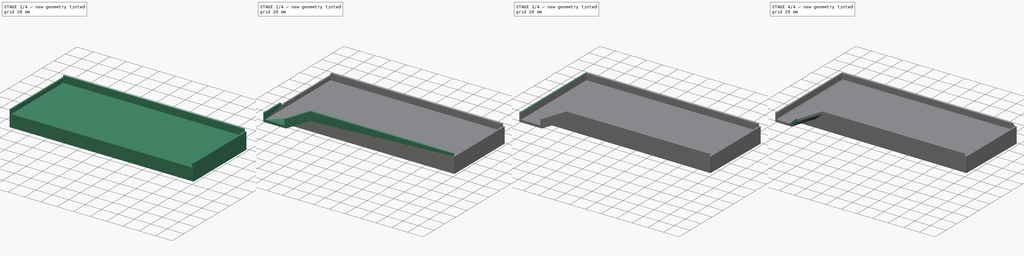
[diagram: build sequence overview — one tinted view per stage of 4, left to right]
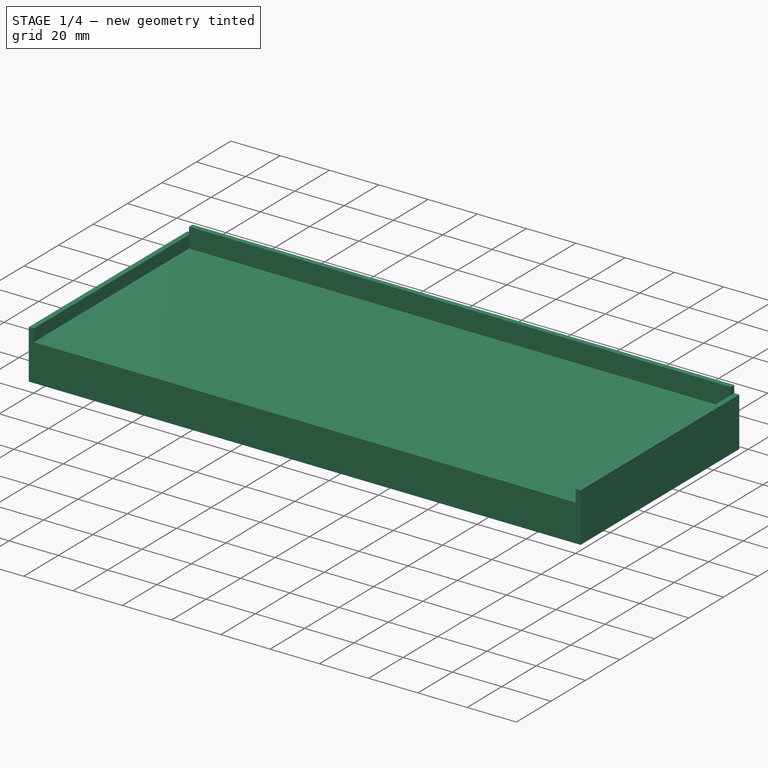
[diagram: stage 1 of 4 — iso view after this stage's code; geometry added in this stage tinted green]
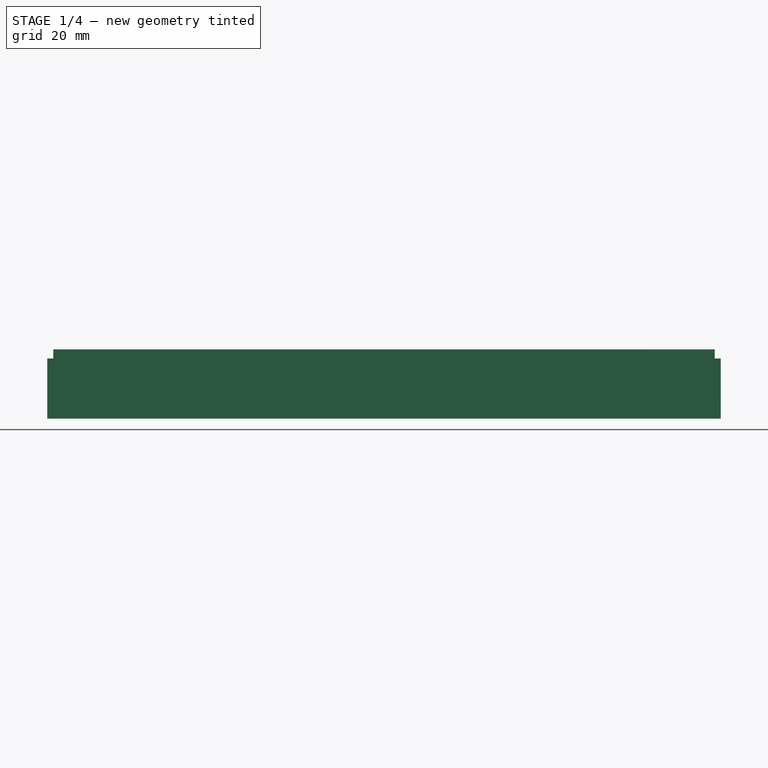
[diagram: stage 1 of 4 — front view after this stage's code; geometry added in this stage tinted green]
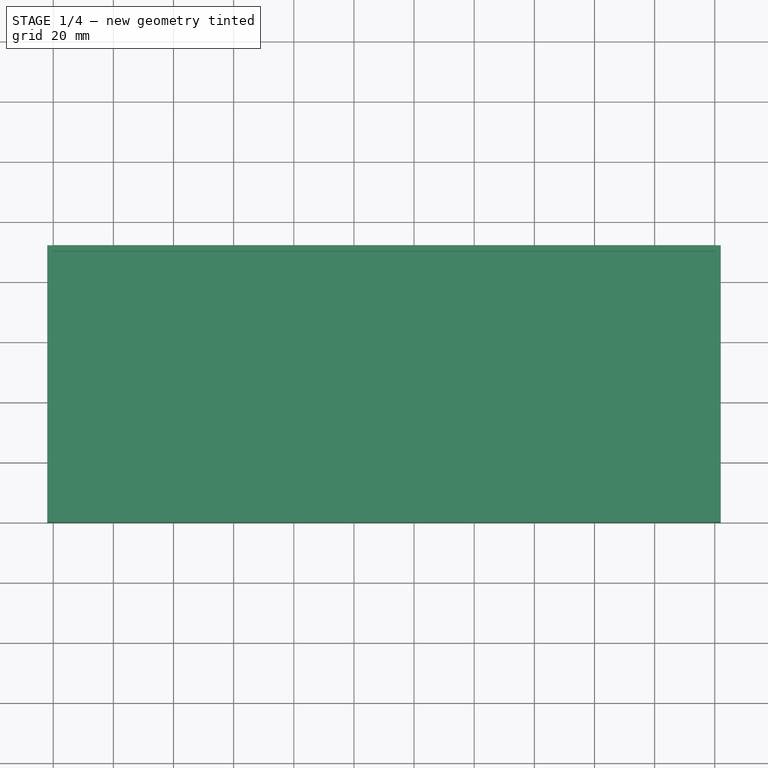
[diagram: stage 1 of 4 — top view after this stage's code; geometry added in this stage tinted green]
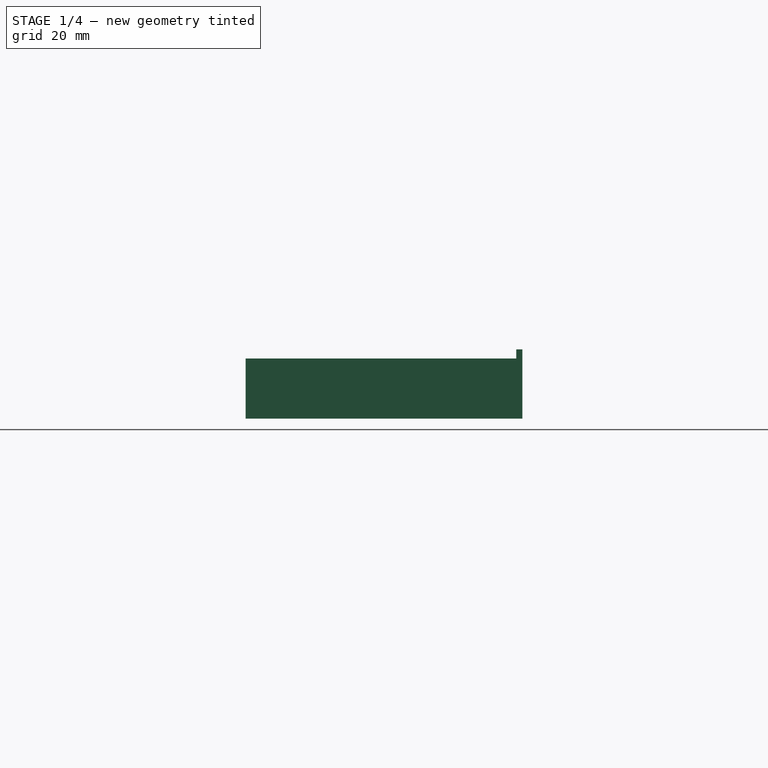
[diagram: stage 1 of 4 — right view after this stage's code; geometry added in this stage tinted green]
FCSTD DOCUMENT  (FreeCAD 1.0R39319 (Git))
Label: drainedTray
License: All rights reserved
LicenseURL: https://en.wikipedia.org/wiki/All_rights_reserved
objects: PartDesign::Pad×7, PartDesign::Chamfer×6, Sketcher::SketchObject×2, PartDesign::Body×1
note: 44 computed .brp shape members not serialized (recipe doc carries the construction recipe); baked Part::Feature solids carry a one-line shape summary decoded from their .brp

FEATURE [Sketcher::SketchObject] Sketch
  ArcFitTolerance = 1e-06
  AttachmentSupport = -> [XY_Plane]
  FullyConstrained = true
  MakeInternals = false
  MapMode = 5
  sketch-geometry (16):
    g0: LineSegment StartX=0 StartY=0 StartZ=0 EndX=220 EndY=0 EndZ=0
    g1: LineSegment StartX=220 StartY=0 StartZ=0 EndX=220 EndY=90 EndZ=0
    g2: LineSegment StartX=220 StartY=90 StartZ=0 EndX=0 EndY=90 EndZ=0
    g3: LineSegment StartX=0 StartY=90 StartZ=0 EndX=0 EndY=0 EndZ=0
    g4: LineSegment StartX=0 StartY=92 StartZ=0 EndX=-2 EndY=92 EndZ=0
    g5: LineSegment StartX=-2 StartY=92 StartZ=0 EndX=-2 EndY=0 EndZ=0
    g6: LineSegment StartX=-2 StartY=0 StartZ=0 EndX=0 EndY=0 EndZ=0
    g7: LineSegment StartX=0 StartY=0 StartZ=0 EndX=0 EndY=92 EndZ=0
    g8: LineSegment StartX=0 StartY=92 StartZ=0 EndX=0 EndY=90 EndZ=0
    g9: LineSegment StartX=0 StartY=90 StartZ=0 EndX=220 EndY=90 EndZ=0
    g10: LineSegment StartX=220 StartY=90 StartZ=0 EndX=220 EndY=92 EndZ=0
    g11: LineSegment StartX=220 StartY=92 StartZ=0 EndX=0 EndY=92 EndZ=0
    g12: LineSegment StartX=220 StartY=0 StartZ=0 EndX=222 EndY=0 EndZ=0
    g13: LineSegment StartX=222 StartY=0 StartZ=0 EndX=222 EndY=92 EndZ=0
    g14: LineSegment StartX=222 StartY=92 StartZ=0 EndX=220 EndY=92 EndZ=0
    g15: LineSegment StartX=220 StartY=92 StartZ=0 EndX=220 EndY=0 EndZ=0
  constraints (43):
    c: Coincident(g0,g1)
    c: Coincident(g1,g2)
    c: Coincident(g2,g3)
    c: Coincident(g3,g0)
    c: Horizontal(g0)
    c: Horizontal(g2)
    c: Vertical(g1)
    c: Vertical(g3)
    c: Coincident(g0,g-1)
    c: Distance(g2,g0) = 90
    c: Distance(g1,g3) = 220
    c: Coincident(g4,g5)
    c: Coincident(g5,g6)
    c: Coincident(g6,g7)
    c: Coincident(g7,g4)
    c: Horizontal(g4)
    c: Horizontal(g6)
    c: Vertical(g5)
    c: Vertical(g7)
    c: PointOnObject(g4,g-2)
    c: PointOnObject(g5,g-1)
    c: Coincident(g8,g9)
    c: Coincident(g9,g10)
    c: Coincident(g10,g11)
    c: Coincident(g11,g8)
    c: Vertical(g8)
    c: Vertical(g10)
    c: Horizontal(g9)
    c: Horizontal(g11)
    c: Coincident(g8,g4)
    c: Coincident(g9,g1)
    c: Coincident(g12,g13)
    c: Coincident(g13,g14)
    c: Coincident(g14,g15)
    c: Coincident(g15,g12)
    c: Horizontal(g12)
    c: Horizontal(g14)
    c: Vertical(g13)
    c: Coincident(g12,g0)
    c: Coincident(g10,g14)
    c: Distance(g5,g3) = 2
    c: Distance(g2,g11) = 2
    c: Distance(g1,g13) = 2
FEATURE [PartDesign::Pad] Pad
  Direction = (0,0,1)
  Length = 15
  Length2 = 10
  Profile = -> Sketch [Edge2,Edge3,Edge12,Edge1]
  ReferenceAxis = -> Sketch [N_Axis]
  Refine = true
  Suppressed = false
  Type = 0
FEATURE [PartDesign::Pad] Pad001
  BaseFeature = -> Pad
  Direction = (0,0,1)
  Length = 20
  Length2 = 15
  Profile = -> Sketch [Edge2,Edge5,Edge9,Edge8,Edge7,Edge16,Edge15,Edge12,Edge14,Edge11]
  ReferenceAxis = -> Sketch [N_Axis]
  Refine = true
  Suppressed = false
  Type = 0
FEATURE [PartDesign::Pad] Pad002
  BaseFeature = -> Pad001
  Direction = (0,0,1)
  Length = 23
  Length2 = 10
  Profile = -> Sketch [Edge10,Edge11,Edge3,Edge5]
  ReferenceAxis = -> Sketch [N_Axis]
  Refine = true
  Suppressed = false
  Type = 0
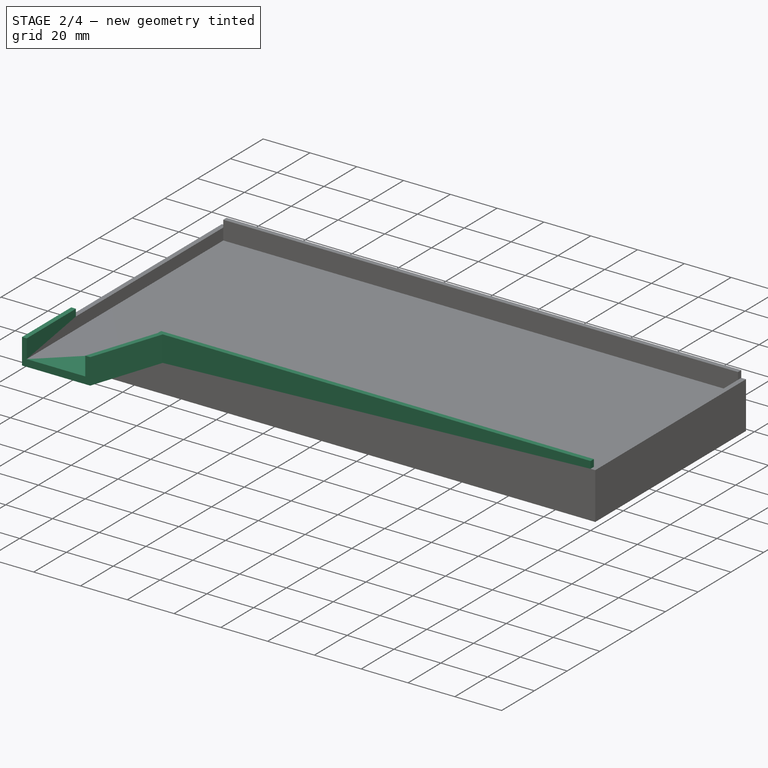
[diagram: stage 2 of 4 — iso view after this stage's code; geometry added in this stage tinted green]
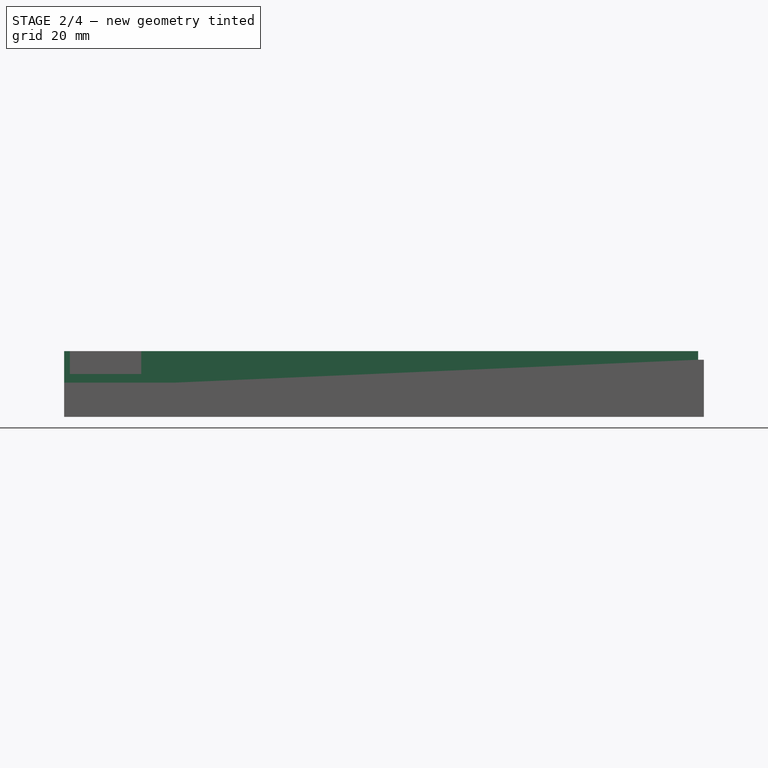
[diagram: stage 2 of 4 — front view after this stage's code; geometry added in this stage tinted green]
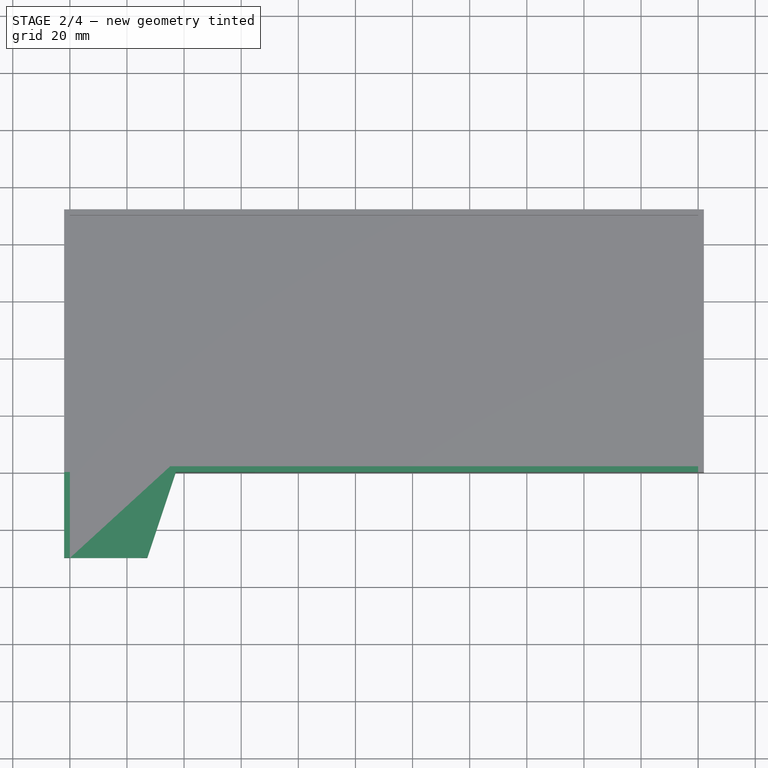
[diagram: stage 2 of 4 — top view after this stage's code; geometry added in this stage tinted green]
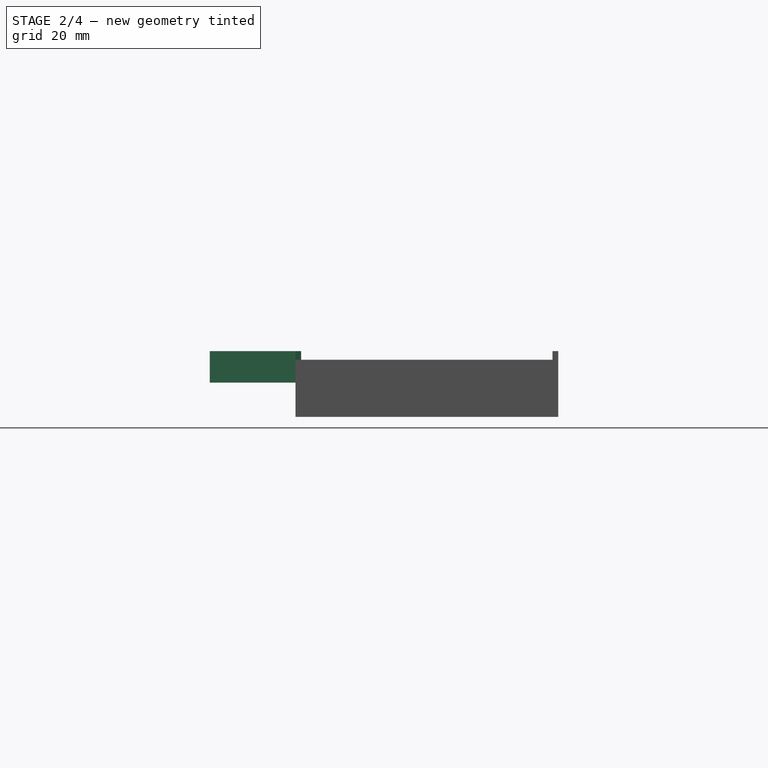
[diagram: stage 2 of 4 — right view after this stage's code; geometry added in this stage tinted green]
FEATURE [Sketcher::SketchObject] Sketch001
  ArcFitTolerance = 1e-06
  AttachmentSupport = -> [Pad002]
  ExternalGeometry = -> [Pad002]
  FullyConstrained = true
  MakeInternals = false
  MapMode = 5
  Placement = pos=(0,0,15) rot=(0,0,1;0rad)
  sketch-geometry (14):
    g0: LineSegment StartX=220 StartY=0 StartZ=0 EndX=220 EndY=2 EndZ=0
    g1: LineSegment StartX=220 StartY=2 StartZ=0 EndX=35 EndY=2 EndZ=0
    g2: LineSegment StartX=35 StartY=2 StartZ=0 EndX=35 EndY=0 EndZ=0
    g3: LineSegment StartX=35 StartY=0 StartZ=0 EndX=220 EndY=0 EndZ=0
    g4: LineSegment StartX=0 StartY=0 StartZ=0 EndX=35 EndY=0 EndZ=0
    g5: LineSegment StartX=35 StartY=0 StartZ=0 EndX=25 EndY=-30 EndZ=0
    g6: LineSegment StartX=25 StartY=-30 StartZ=0 EndX=27.1082 EndY=-30 EndZ=0
    g7: LineSegment StartX=27.1082 StartY=-30 StartZ=0 EndX=37.1082 EndY=0 EndZ=0
    g8: LineSegment StartX=0 StartY=0 StartZ=0 EndX=0 EndY=-30 EndZ=0
    g9: LineSegment StartX=0 StartY=-30 StartZ=0 EndX=-2 EndY=-30 EndZ=0
    g10: LineSegment StartX=-2 StartY=-30 StartZ=0 EndX=-2 EndY=0 EndZ=0
    g11: LineSegment StartX=-2 StartY=0 StartZ=0 EndX=0 EndY=0 EndZ=0
    g12: LineSegment StartX=0 StartY=-30 StartZ=0 EndX=25 EndY=-30 EndZ=0
    g13: LineSegment StartX=35 StartY=0 StartZ=0 EndX=37.1082 EndY=0 EndZ=0
  constraints (37):
    c: Coincident(g0,g-3)
    c: PointOnObject(g0,g-3)
    c: Coincident(g1,g0)
    c: Horizontal(g1)
    c: Coincident(g2,g1)
    c: PointOnObject(g2,g-1)
    c: Vertical(g2)
    c: Coincident(g3,g2)
    c: Coincident(g3,g0)
    c: Coincident(g4,g-1)
    c: Coincident(g4,g2)
    c: Coincident(g5,g2)
    c: Coincident(g6,g5)
    c: Horizontal(g6)
    c: Coincident(g7,g6)
    c: PointOnObject(g7,g3)
    c: Coincident(g8,g4)
    c: PointOnObject(g8,g-2)
    c: Coincident(g9,g8)
    c: Horizontal(g9)
    c: Coincident(g10,g9)
    c: PointOnObject(g10,g-1)
    c: Vertical(g10)
    c: Coincident(g11,g10)
    c: Coincident(g11,g4)
    c: Coincident(g12,g8)
    c: Coincident(g12,g5)
    c: Horizontal(g12)
    c: Distance(g7,g5) = 2
    c: Distance(g1,g3) = 2
    c: Distance(g8,g10) = 2
    c: DistanceY(g8,g8) = 30
    c: Parallel(g7,g5)
    c: Coincident(g13,g2)
    c: Coincident(g13,g7)
    c: DistanceX(g4,g4) = 35
    c: DistanceX(g12,g12) = 25
FEATURE [PartDesign::Pad] Pad003
  BaseFeature = -> Pad002
  Direction = (0,0,1)
  Length = 8
  Length2 = 10
  Profile = -> Sketch001 [Edge14,Edge3,Edge2,Vertex1,Edge1]
  ReferenceAxis = -> Sketch001 [N_Axis]
  Refine = true
  Suppressed = false
  Type = 0
FEATURE [PartDesign::Pad] Pad004
  BaseFeature = -> Pad003
  Direction = (0,0,1)
  Length = 3
  Length2 = 10
  Profile = -> Sketch001 [Edge7,Edge6,Edge13,Edge9,Edge10,Edge11,Edge8,Edge5]
  ReferenceAxis = -> Sketch001 [N_Axis]
  Refine = true
  Reversed = true
  Suppressed = false
  Type = 0
FEATURE [PartDesign::Pad] Pad005
  BaseFeature = -> Pad004
  Direction = (0,0,1)
  Length = 8
  Length2 = 10
  Profile = -> Sketch001 [Edge7,Edge6,Edge4,Edge5,Edge11,Edge12,Edge10,Edge9]
  ReferenceAxis = -> Sketch001 [N_Axis]
  Refine = true
  Suppressed = false
  Type = 0
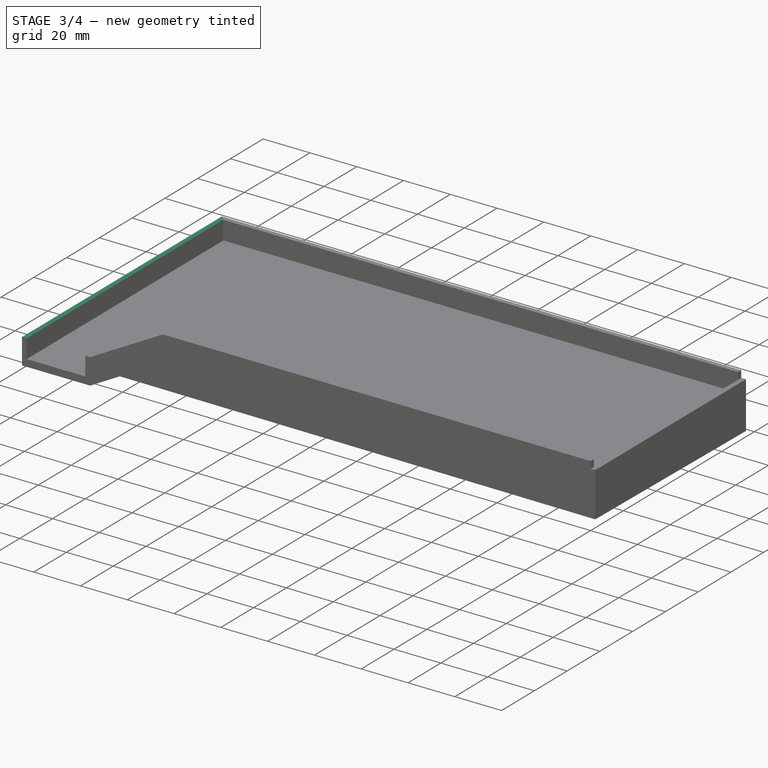
[diagram: stage 3 of 4 — iso view after this stage's code; geometry added in this stage tinted green]
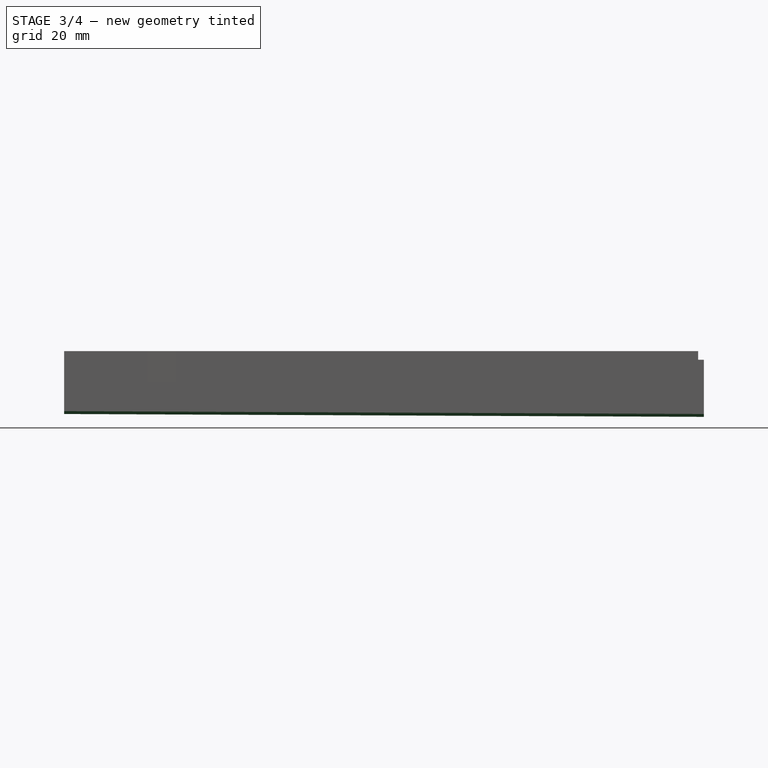
[diagram: stage 3 of 4 — front view after this stage's code; geometry added in this stage tinted green]
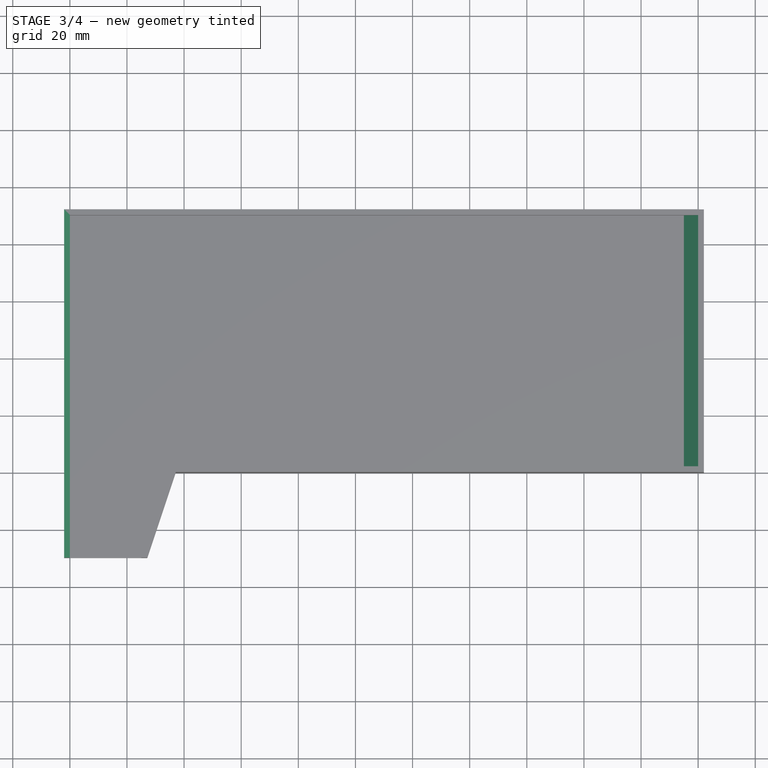
[diagram: stage 3 of 4 — top view after this stage's code; geometry added in this stage tinted green]
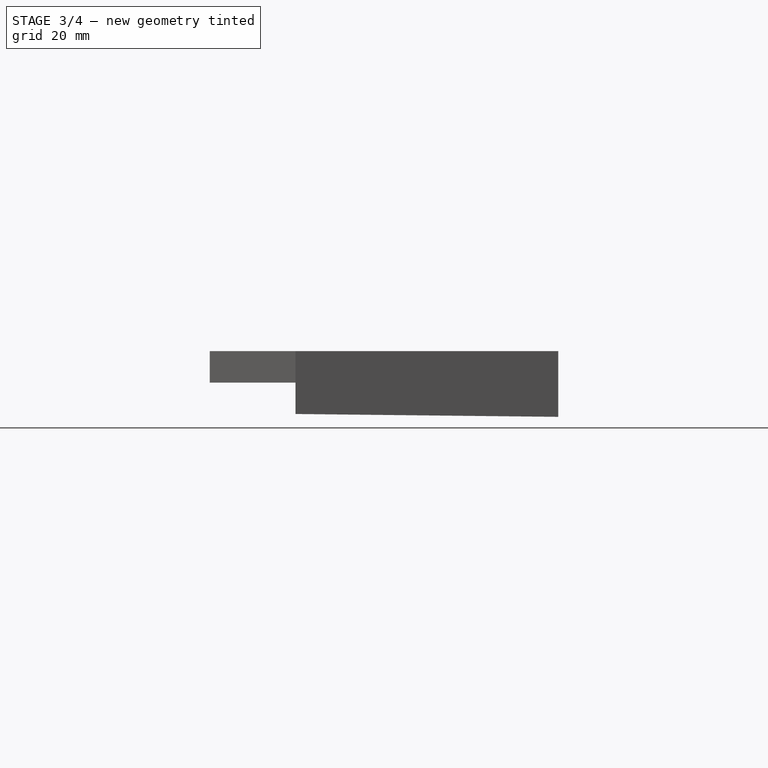
[diagram: stage 3 of 4 — right view after this stage's code; geometry added in this stage tinted green]
FEATURE [PartDesign::Chamfer] Chamfer
  Angle = 45
  Base = -> Pad005 [Edge15]
  BaseFeature = -> Pad005
  ChamferType = 1
  FlipDirection = false
  Refine = true
  Size = 223.99
  Size2 = 1
  SupportTransform = false
  Suppressed = false
  UseAllEdges = false
FEATURE [PartDesign::Chamfer] Chamfer001
  Angle = 45
  Base = -> Chamfer [Edge14]
  BaseFeature = -> Chamfer
  ChamferType = 1
  FlipDirection = false
  Refine = true
  Size = 91.99
  Size2 = 1
  SupportTransform = false
  Suppressed = false
  UseAllEdges = false
FEATURE [PartDesign::Pad] Pad006
  BaseFeature = -> Chamfer001
  Direction = (0,0,1)
  Length = 23
  Length2 = -6
  Profile = -> Sketch [Edge15,Edge16,Edge12,Edge11,Edge14]
  ReferenceAxis = -> Sketch [N_Axis]
  Refine = true
  Suppressed = false
  Type = 4
FEATURE [PartDesign::Chamfer] Chamfer002
  Angle = 45
  Base = -> Pad006 [Edge39]
  BaseFeature = -> Pad006
  ChamferType = 0
  FlipDirection = false
  Refine = true
  Size = 4.999
  Size2 = 1
  SupportTransform = false
  Suppressed = false
  UseAllEdges = false
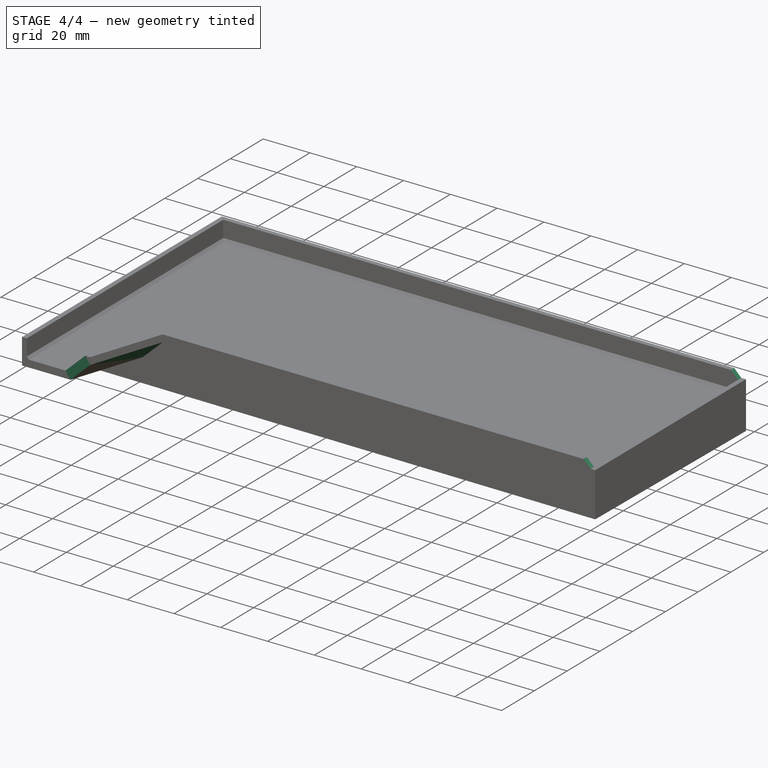
[diagram: stage 4 of 4 — iso view after this stage's code; geometry added in this stage tinted green]
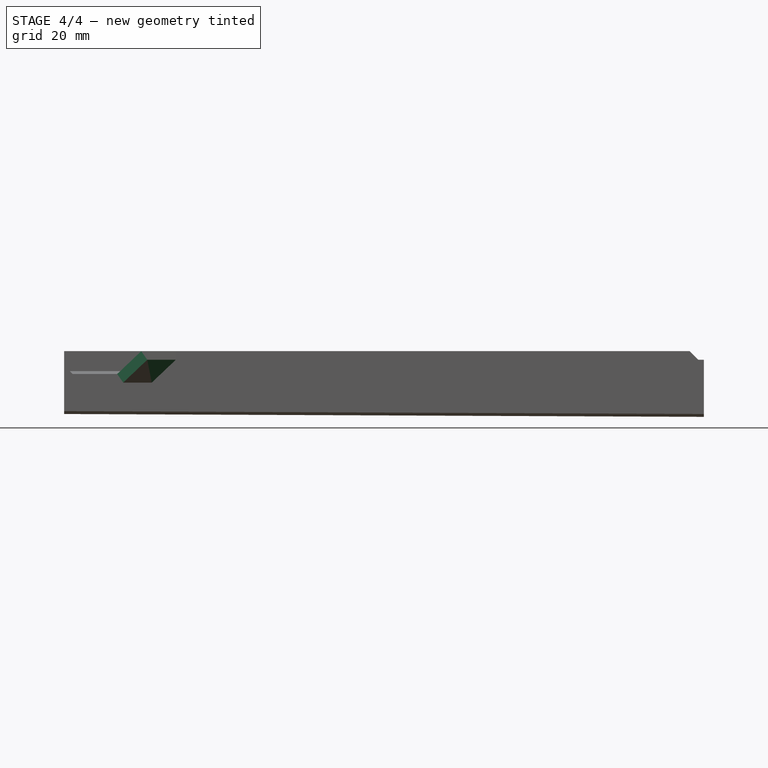
[diagram: stage 4 of 4 — front view after this stage's code; geometry added in this stage tinted green]
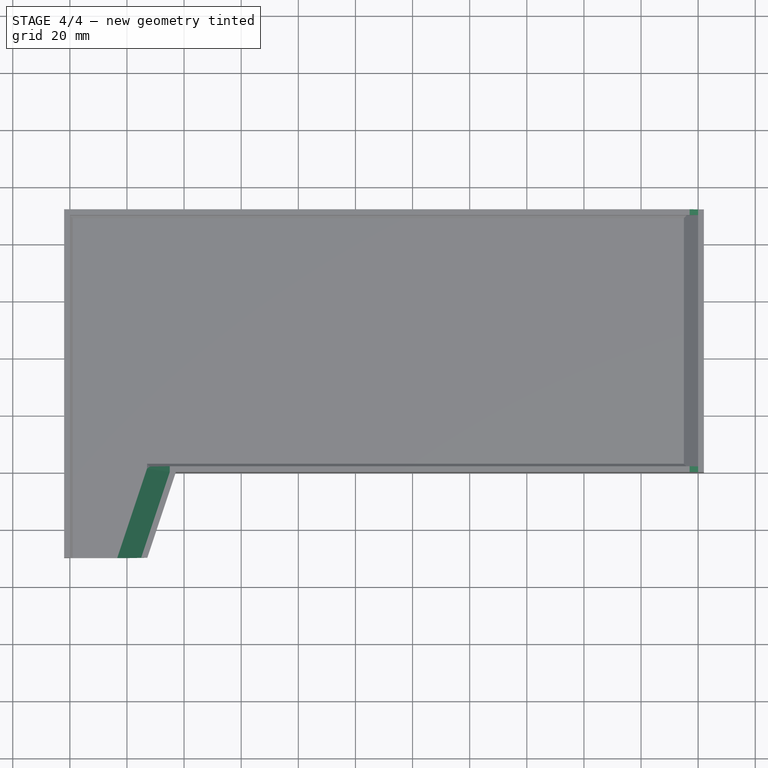
[diagram: stage 4 of 4 — top view after this stage's code; geometry added in this stage tinted green]
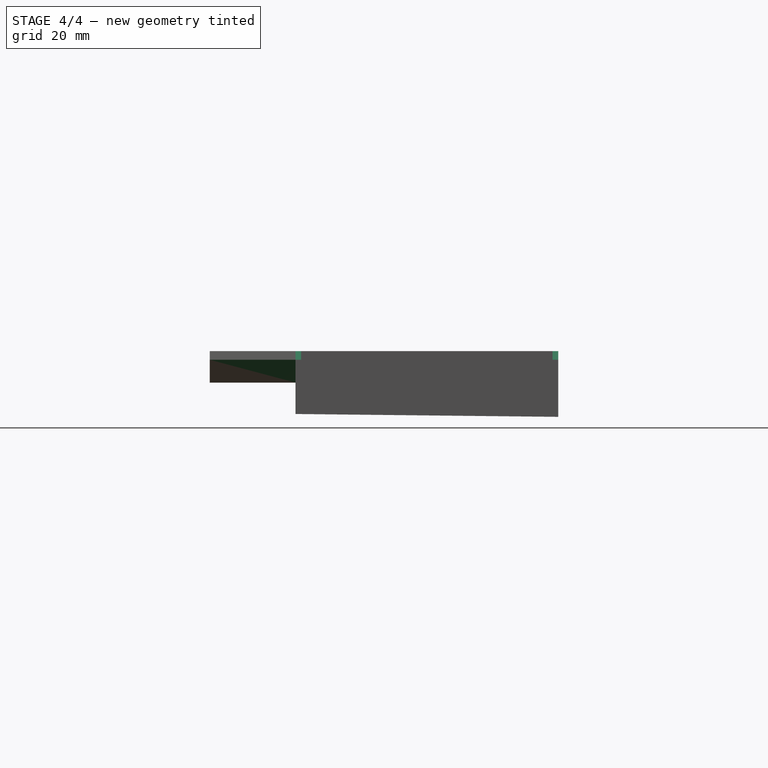
[diagram: stage 4 of 4 — right view after this stage's code; geometry added in this stage tinted green]
FEATURE [PartDesign::Chamfer] Chamfer003
  Angle = 45
  Base = -> Chamfer002 [Edge30,Edge32]
  BaseFeature = -> Chamfer002
  ChamferType = 0
  FlipDirection = false
  Refine = true
  Size = 2.99
  Size2 = 1
  SupportTransform = false
  Suppressed = false
  UseAllEdges = false
FEATURE [PartDesign::Chamfer] Chamfer004
  Angle = 45
  Base = -> Chamfer003 [Edge22,Edge21,Edge66]
  BaseFeature = -> Chamfer003
  ChamferType = 0
  FlipDirection = false
  Refine = true
  Size = 7.99
  Size2 = 1
  SupportTransform = false
  Suppressed = false
  UseAllEdges = false
FEATURE [PartDesign::Chamfer] Chamfer005
  Angle = 45
  Base = -> Chamfer004 [Edge3,Edge5,Edge8]
  BaseFeature = -> Chamfer004
  ChamferType = 0
  FlipDirection = false
  Refine = true
  Size = 1
  Size2 = 1
  SupportTransform = false
  Suppressed = false
  UseAllEdges = false
FEATURE [PartDesign::Body] Body
  AllowCompound = false
  Group = -> [Sketch,Pad,Pad001,Pad002,Sketch001,Pad003,Pad004,Pad005,Chamfer,Chamfer001,Pad006,Chamfer002,Chamfer003,Chamfer004,Chamfer005]
  Origin = -> Origin
  Tip = -> Chamfer005
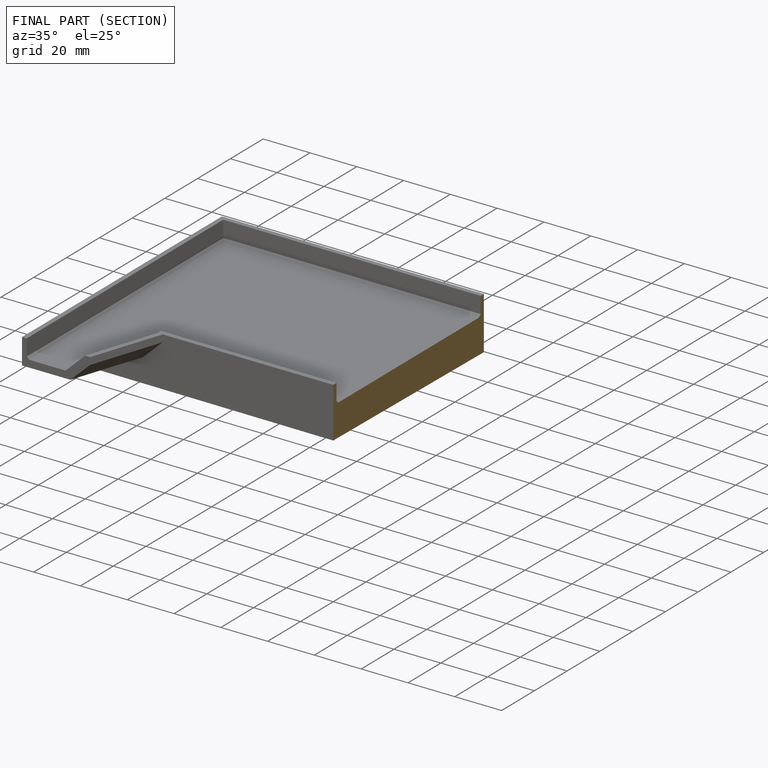
[diagram: finished part — half-section view (interior)]
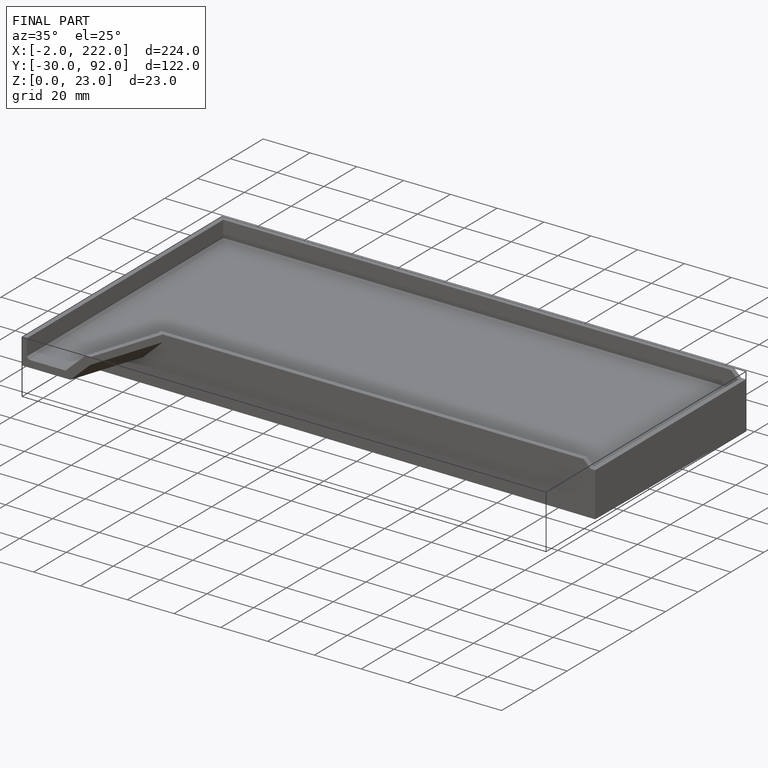
[diagram: finished part — iso view with bounding-box wireframe]
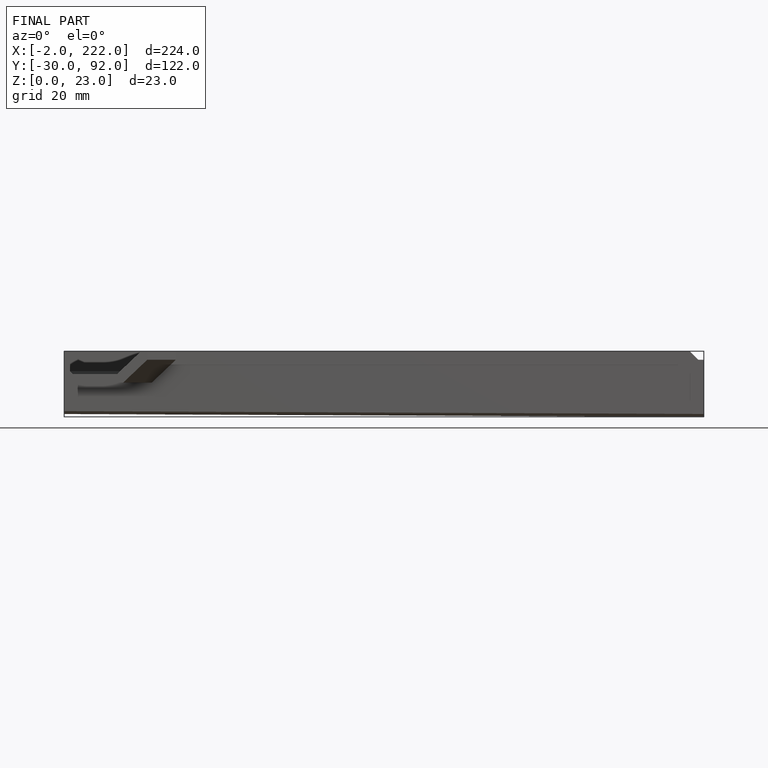
[diagram: finished part — front view with bounding-box wireframe]
